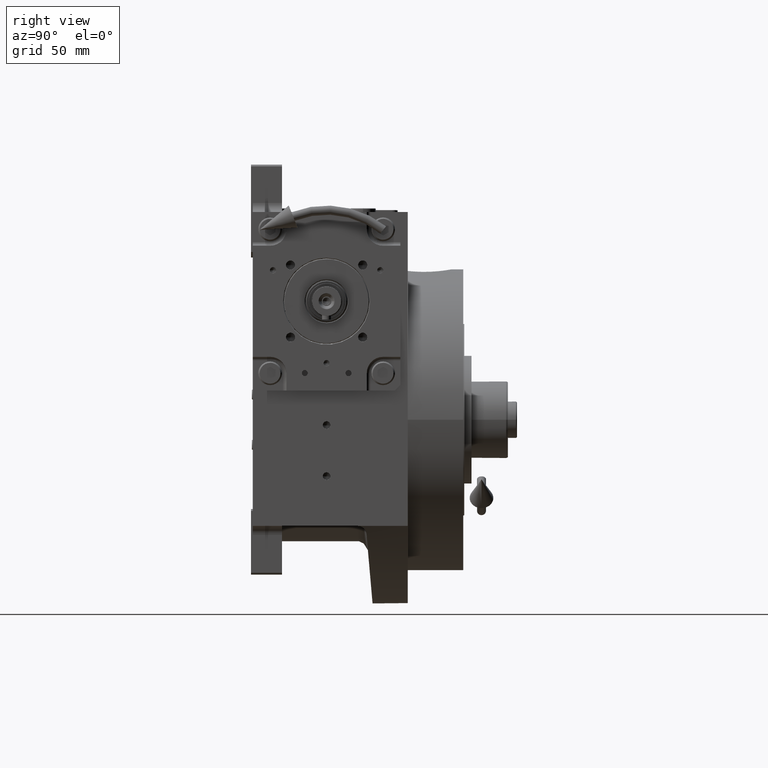
[diagram: clean part render]
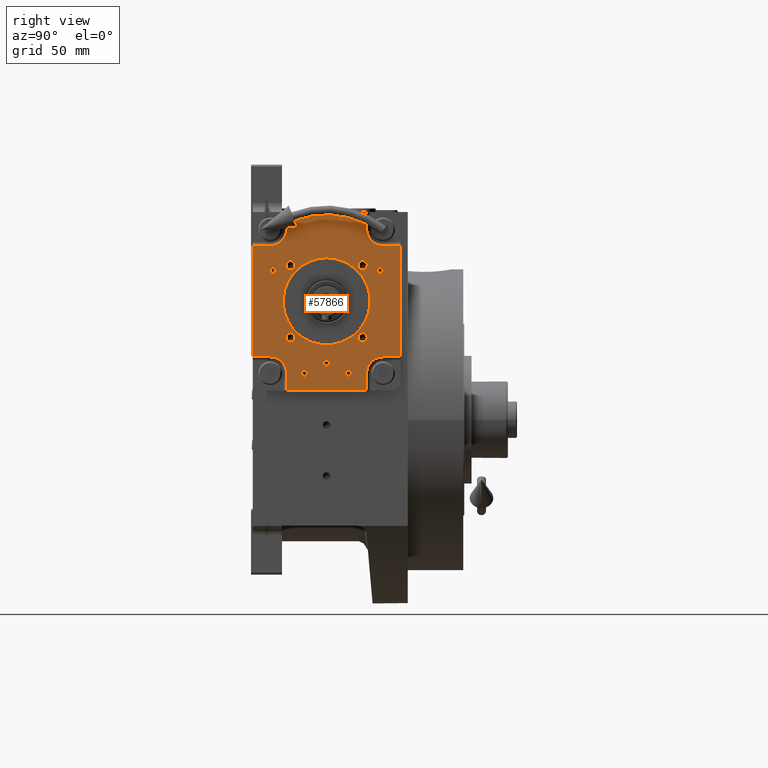
[diagram: same view with one face highlighted and labeled with its STEP entity id]
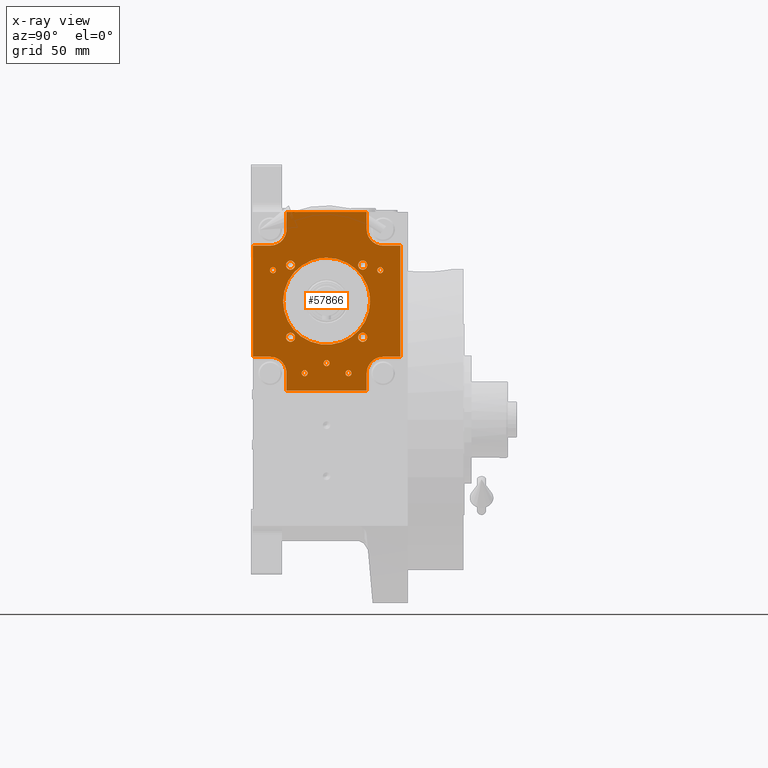
[diagram: x-ray of the same camera — body ghosted, the highlighted face saturated]
A machine part, right view. The second image highlights one B-rep face of the part: STEP entity #57866.
The next image is the same camera in x-ray: the body ghosted, the highlighted face saturated — about 0% of this face is hidden behind the body in this view.
In plain terms, the highlighted planar face has unit normal (-1, -0, 0).
Its self-contained STEP definition (entity closure, byte-faithful):
#305 = CARTESIAN_POINT ( 'NONE',  ( 31.00000000000000000, -14.00000000000047073, -39.50000000000000711 ) ) ;
#439 = CARTESIAN_POINT ( 'NONE',  ( 29.44486372867113388, -14.00000000000047073, -17.00000000000000000 ) ) ;
#487 = CARTESIAN_POINT ( 'NONE',  ( -17.98235932460615061, -13.99999999999960210, 15.76636488206898612 ) ) ;
#490 = EDGE_CURVE ( 'NONE', #65855, #2251, #44888, .T. ) ;
#788 = VERTEX_POINT ( 'NONE', #26096 ) ;
#862 = ORIENTED_EDGE ( 'NONE', *, *, #38657, .F. ) ;
#906 = DIRECTION ( 'NONE',  ( 1.000000000000000000, -2.076117056049039260E-14, 7.549516567451102340E-15 ) ) ;
#981 = CARTESIAN_POINT ( 'NONE',  ( 23.47920115566133248, -14.00000000000049205, -4.271604635540795059 ) ) ;
#1122 = EDGE_LOOP ( 'NONE', ( #7848, #11947 ) ) ;
#1248 = VERTEX_POINT ( 'NONE', #33400 ) ;
#1692 = CARTESIAN_POINT ( 'NONE',  ( 23.44379405512662018, -14.00000000000049205, -4.461832952020050591 ) ) ;
#1851 = VECTOR ( 'NONE', #36402, 1000.000000000000000 ) ;
#2113 = DIRECTION ( 'NONE',  ( -1.000000000000000000, 2.081668171172169775E-14, -5.551115123125785858E-15 ) ) ;
#2251 = VERTEX_POINT ( 'NONE', #51086 ) ;
#2577 = CARTESIAN_POINT ( 'NONE',  ( -40.49999999999929656, -13.99999999999906919, 30.49999999999952749 ) ) ;
#2615 = CARTESIAN_POINT ( 'NONE',  ( 23.70962956883389339, -14.00000000000047962, 3.125609056103077599 ) ) ;
#3009 = ORIENTED_EDGE ( 'NONE', *, *, #56318, .F. ) ;
#3052 = CARTESIAN_POINT ( 'NONE',  ( 40.50000000000071054, -14.00000000000094147, 30.50000000000023448 ) ) ;
#3223 = CARTESIAN_POINT ( 'NONE',  ( -19.79898987322287596, -13.99999999999952749, 19.79898987322306780 ) ) ;
#3243 = EDGE_CURVE ( 'NONE', #13356, #57406, #58826, .T. ) ;
#3357 = ORIENTED_EDGE ( 'NONE', *, *, #25416, .T. ) ;
#3429 = EDGE_CURVE ( 'NONE', #26145, #24021, #31239, .T. ) ;
#3610 = EDGE_CURVE ( 'NONE', #23665, #7778, #30107, .T. ) ;
#4081 = DIRECTION ( 'NONE',  ( -1.000000000000000000, 2.102695122396129936E-14, -8.410780489584520058E-15 ) ) ;
#4509 = CARTESIAN_POINT ( 'NONE',  ( 40.50000000000071054, -14.00000000000094147, 30.50000000000023448 ) ) ;
#4586 = VERTEX_POINT ( 'NONE', #59195 ) ;
#5100 = EDGE_CURVE ( 'NONE', #16660, #65855, #54069, .T. ) ;
#5195 = CARTESIAN_POINT ( 'NONE',  ( -14.56088801808464517, -13.99999999999965894, 18.97165839184646785 ) ) ;
#5212 = CIRCLE ( 'NONE', #69605, 9.000000000000001776 ) ;
#5604 = CARTESIAN_POINT ( 'NONE',  ( -21.99999999999928946, -13.99999999999952749, 48.99999999999976552 ) ) ;
#5850 = EDGE_CURVE ( 'NONE', #70063, #4586, #15036, .T. ) ;
#5886 = CARTESIAN_POINT ( 'NONE',  ( 11.95575968379460541, -14.00000000000020606, 20.71225054030637480 ) ) ;
#6323 = DIRECTION ( 'NONE',  ( 2.076117056049039260E-14, -1.000000000000000000, 1.887379141862854077E-15 ) ) ;
#6402 = CARTESIAN_POINT ( 'NONE',  ( 23.54577769822314082, -14.00000000000049027, -3.887975449872541844 ) ) ;
#6426 = ORIENTED_EDGE ( 'NONE', *, *, #64316, .T. ) ;
#6479 = CARTESIAN_POINT ( 'NONE',  ( 19.79898987322381743, -14.00000000000047073, 19.79898987322330228 ) ) ;
#6542 = DIRECTION ( 'NONE',  ( -1.000000000000000000, 2.076117056049039260E-14, -7.549516567451102340E-15 ) ) ;
#6831 = CIRCLE ( 'NONE', #62036, 2.499999999999998668 ) ;
#6984 = CARTESIAN_POINT ( 'NONE',  ( 31.09486372867113246, -14.00000000000047073, -17.00000000000000000 ) ) ;
#7138 = ORIENTED_EDGE ( 'NONE', *, *, #68054, .F. ) ;
#7207 = ORIENTED_EDGE ( 'NONE', *, *, #37731, .F. ) ;
#7373 = CIRCLE ( 'NONE', #55663, 2.499999999999998668 ) ;
#7684 = CARTESIAN_POINT ( 'NONE',  ( 40.50000000000023448, -14.00000000000094147, -30.50000000000000000 ) ) ;
#7778 = VERTEX_POINT ( 'NONE', #6984 ) ;
#7848 = ORIENTED_EDGE ( 'NONE', *, *, #45136, .F. ) ;
#7981 = LINE ( 'NONE', #2577, #44736 ) ;
#8025 = CARTESIAN_POINT ( 'NONE',  ( 20.71277833345473240, -14.00000000000040323, 11.95494346992311918 ) ) ;
#8203 = DIRECTION ( 'NONE',  ( 2.076117056049039260E-14, -1.000000000000000000, 1.887379141862854077E-15 ) ) ;
#8359 = CIRCLE ( 'NONE', #54388, 2.499999999999998668 ) ;
#8779 = EDGE_CURVE ( 'NONE', #35781, #21665, #38572, .T. ) ;
#8939 = CARTESIAN_POINT ( 'NONE',  ( -21.44833860699360173, -13.99999999999957367, -10.57860939760680630 ) ) ;
#9076 = CARTESIAN_POINT ( 'NONE',  ( 12.00000000000058975, -14.00000000000047073, 39.50000000000000000 ) ) ;
#10020 = CARTESIAN_POINT ( 'NONE',  ( -23.70962961231608190, -13.99999999999950973, -3.125608614640187355 ) ) ;
#11036 = CIRCLE ( 'NONE', #24864, 1.649999999999999911 ) ;
#11210 = EDGE_LOOP ( 'NONE', ( #21929, #45358 ) ) ;
#11478 = DIRECTION ( 'NONE',  ( -1.000000000000000000, 2.081668171172168198E-14, -7.709882115452474222E-15 ) ) ;
#11660 = CARTESIAN_POINT ( 'NONE',  ( -22.64668203140329439, -13.99999999999951505, 7.685839165588406630 ) ) ;
#11854 = CIRCLE ( 'NONE', #50958, 1.650000000000000355 ) ;
#11947 = ORIENTED_EDGE ( 'NONE', *, *, #3610, .F. ) ;
#11996 = ORIENTED_EDGE ( 'NONE', *, *, #8779, .F. ) ;
#12013 = CARTESIAN_POINT ( 'NONE',  ( -23.63854925147780506, -13.99999999999950262, 3.311476437734589329 ) ) ;
#12217 = DIRECTION ( 'NONE',  ( 7.549516567451105496E-15, -1.887379141862852893E-15, 1.000000000000000000 ) ) ;
#12526 = CARTESIAN_POINT ( 'NONE',  ( 1.650000000000553024, -14.00000000000001243, 34.00000000000000000 ) ) ;
#12835 = VECTOR ( 'NONE', #906, 1000.000000000000000 ) ;
#12850 = CARTESIAN_POINT ( 'NONE',  ( 11.95543814826866758, -14.00000000000028777, -20.71254795357616985 ) ) ;
#13207 = DIRECTION ( 'NONE',  ( -1.000000000000000000, 2.081668171172169775E-14, -6.938893903907232322E-15 ) ) ;
#13356 = VERTEX_POINT ( 'NONE', #51536 ) ;
#13840 = AXIS2_PLACEMENT_3D ( 'NONE', #59762, #43200, #53644 ) ;
#13867 = B_SPLINE_CURVE_WITH_KNOTS ( 'NONE', 3,
 ( #29064, #40241, #22236, #28702, #6402, #981, #1692, #33788, #34162, #44228, #44914, #23660, #62179, #27998, #16850, #12850, #38823, #66524, #39532, #55749, #17193, #56099 ),
 .UNSPECIFIED., .F., .F.,
 ( 4, 1, 1, 2, 2, 2, 2, 2, 2, 2, 2, 4 ),
 ( 0.000000000000000000, 0.03125000444582090586, 0.04687500666873135879, 0.05468750778018657832, 0.06250000889164179785, 0.1250000177832835124, 0.1875000266749252131, 0.2500000355665669138, 0.3125000444582086145, 0.3750000533498503152, 0.4375000622414920159, 0.5000000711331337166 ),
 .UNSPECIFIED. ) ;
#14200 = DIRECTION ( 'NONE',  ( 1.000000000000000000, -2.081668171172168198E-14, 7.709882115452474222E-15 ) ) ;
#14340 = CARTESIAN_POINT ( 'NONE',  ( -22.34697688814370764, -13.99999999999955236, -8.409466773887961821 ) ) ;
#15036 = B_SPLINE_CURVE_WITH_KNOTS ( 'NONE', 3,
 ( #25486, #53220, #48187, #26209, #58287, #42076, #21149, #37738, #42774, #37388, #47475, #47839, #8939, #14340, #69411, #47116, #59354, #36328, #20091, #10020, #64025, #70117 ),
 .UNSPECIFIED., .F., .F.,
 ( 4, 2, 2, 2, 2, 2, 2, 1, 1, 2, 2, 4 ),
 ( 0.5000000711331337166, 0.5625000622414920715, 0.6250000533498503152, 0.6875000444582086701, 0.7500000355665669138, 0.8125000266749251576, 0.8750000177832834014, 0.9062500133374625788, 0.9218750111145521675, 0.9296875100030967953, 0.9375000088916416452, 1.000000000000000000 ),
 .UNSPECIFIED. ) ;
#15180 = ORIENTED_EDGE ( 'NONE', *, *, #27960, .F. ) ;
#15272 = FACE_BOUND ( 'NONE', #35763, .T. ) ;
#15312 = EDGE_CURVE ( 'NONE', #1248, #38824, #24921, .T. ) ;
#15435 = ORIENTED_EDGE ( 'NONE', *, *, #66646, .F. ) ;
#15637 = DIRECTION ( 'NONE',  ( -7.324388009679851300E-15, 1.927470528863118556E-15, -1.000000000000000000 ) ) ;
#15981 = CARTESIAN_POINT ( 'NONE',  ( 31.00000000000070699, -14.00000000000094147, 39.50000000000000711 ) ) ;
#16050 = CARTESIAN_POINT ( 'NONE',  ( 17.29898987322382098, -14.00000000000047073, 19.79898987322334492 ) ) ;
#16084 = CARTESIAN_POINT ( 'NONE',  ( -30.99999999999941025, -13.99999999999952749, 30.49999999999976197 ) ) ;
#16143 = CARTESIAN_POINT ( 'NONE',  ( 12.00000000000058975, -14.00000000000047073, 39.50000000000000000 ) ) ;
#16163 = DIRECTION ( 'NONE',  ( -1.000000000000000000, 2.102695122396131513E-14, 6.308085367188395171E-15 ) ) ;
#16256 = AXIS2_PLACEMENT_3D ( 'NONE', #35801, #19240, #40864 ) ;
#16338 = CARTESIAN_POINT ( 'NONE',  ( 6.192328095638624852, -14.00000000000008882, 23.09972492920063303 ) ) ;
#16508 = DIRECTION ( 'NONE',  ( 2.076117056049039260E-14, -1.000000000000000000, 1.887379141862854077E-15 ) ) ;
#16651 = CIRCLE ( 'NONE', #25864, 1.650000000000000355 ) ;
#16657 = DIRECTION ( 'NONE',  ( -1.000000000000000000, 2.102695122396131513E-14, -8.410780489584526369E-15 ) ) ;
#16660 = VERTEX_POINT ( 'NONE', #62209 ) ;
#16672 = CIRCLE ( 'NONE', #23548, 2.499999999999998668 ) ;
#16706 = CARTESIAN_POINT ( 'NONE',  ( 10.57957080955221230, -14.00000000000017231, 21.44796303468474008 ) ) ;
#16850 = CARTESIAN_POINT ( 'NONE',  ( 14.56088552662204272, -14.00000000000034106, -18.97166031808819042 ) ) ;
#17193 = CARTESIAN_POINT ( 'NONE',  ( 1.566774008615122948, -14.00000000000007461, -23.86393752002921786 ) ) ;
#17275 = LINE ( 'NONE', #49708, #55648 ) ;
#17404 = CARTESIAN_POINT ( 'NONE',  ( -23.44379417511092356, -13.99999999999949907, 4.461832321008845526 ) ) ;
#17759 = CARTESIAN_POINT ( 'NONE',  ( -18.97212075496540606, -13.99999999999958611, 14.56041685814039610 ) ) ;
#17826 = LINE ( 'NONE', #50255, #12835 ) ;
#17890 = EDGE_LOOP ( 'NONE', ( #7207, #22234 ) ) ;
#18334 = ORIENTED_EDGE ( 'NONE', *, *, #70347, .F. ) ;
#18401 = ORIENTED_EDGE ( 'NONE', *, *, #23567, .F. ) ;
#18838 = CIRCLE ( 'NONE', #59104, 9.000000000000001776 ) ;
#19240 = DIRECTION ( 'NONE',  ( 2.076117056049039260E-14, -1.000000000000000000, 1.887379141862854077E-15 ) ) ;
#19408 = EDGE_CURVE ( 'NONE', #57406, #13356, #16651, .T. ) ;
#19421 = DIRECTION ( 'NONE',  ( 1.000000000000000000, -2.081668171172169775E-14, 5.551115123125785858E-15 ) ) ;
#19673 = CARTESIAN_POINT ( 'NONE',  ( 22.00000000000070699, -14.00000000000047073, 49.00000000000000000 ) ) ;
#20011 = CIRCLE ( 'NONE', #60272, 1.649999999999998579 ) ;
#20091 = CARTESIAN_POINT ( 'NONE',  ( -23.36748971678164111, -13.99999999999952216, -4.845252042923835489 ) ) ;
#20145 = DIRECTION ( 'NONE',  ( 1.000000000000000000, -2.081668171172169775E-14, 6.938893903907232322E-15 ) ) ;
#20782 = VERTEX_POINT ( 'NONE', #45685 ) ;
#20860 = EDGE_CURVE ( 'NONE', #47834, #2251, #61540, .T. ) ;
#21059 = CARTESIAN_POINT ( 'NONE',  ( 22.29898987322382098, -14.00000000000047073, 19.79898987322334492 ) ) ;
#21085 = VECTOR ( 'NONE', #70603, 1000.000000000000000 ) ;
#21149 = CARTESIAN_POINT ( 'NONE',  ( -11.95576278632353961, -13.99999999999978861, -20.71224872910304526 ) ) ;
#21267 = DIRECTION ( 'NONE',  ( 1.000000000000000000, -2.102695122396131513E-14, 1.682156097916905274E-14 ) ) ;
#21399 = FACE_BOUND ( 'NONE', #17890, .T. ) ;
#21444 = VECTOR ( 'NONE', #12217, 1000.000000000000000 ) ;
#21497 = CARTESIAN_POINT ( 'NONE',  ( -22.29898987322311399, -13.99999999999952749, -19.79898987322381743 ) ) ;
#21665 = VERTEX_POINT ( 'NONE', #21059 ) ;
#21802 = ORIENTED_EDGE ( 'NONE', *, *, #31955, .F. ) ;
#21878 = CARTESIAN_POINT ( 'NONE',  ( 31.00000000000058975, -14.00000000000094147, 30.50000000000000000 ) ) ;
#21891 = DIRECTION ( 'NONE',  ( -1.000000000000000000, 2.102695122396129305E-14, -8.410780489584516903E-15 ) ) ;
#21929 = ORIENTED_EDGE ( 'NONE', *, *, #3243, .F. ) ;
#22234 = ORIENTED_EDGE ( 'NONE', *, *, #48979, .F. ) ;
#22236 = CARTESIAN_POINT ( 'NONE',  ( 23.80536272683614385, -14.00000000000049560, -1.958930260382325317 ) ) ;
#22279 = DIRECTION ( 'NONE',  ( -1.000000000000000000, 2.102695122396129305E-14, -8.410780489584516903E-15 ) ) ;
#22369 = ORIENTED_EDGE ( 'NONE', *, *, #69710, .T. ) ;
#22811 = CARTESIAN_POINT ( 'NONE',  ( -1.649999999999447020, -13.99999999999999822, 34.00000000000000000 ) ) ;
#22985 = CIRCLE ( 'NONE', #47172, 1.650000000000000355 ) ;
#23055 = VERTEX_POINT ( 'NONE', #23481 ) ;
#23481 = CARTESIAN_POINT ( 'NONE',  ( 10.35000000000058940, -14.00000000000047073, 39.50000000000000000 ) ) ;
#23548 = AXIS2_PLACEMENT_3D ( 'NONE', #61943, #29901, #56200 ) ;
#23567 = EDGE_CURVE ( 'NONE', #53692, #69162, #16672, .T. ) ;
#23660 = CARTESIAN_POINT ( 'NONE',  ( 18.97211941539651647, -14.00000000000041744, -14.56041862828632638 ) ) ;
#23665 = VERTEX_POINT ( 'NONE', #69472 ) ;
#23867 = CARTESIAN_POINT ( 'NONE',  ( 22.34697646102524615, -14.00000000000044764, 8.409467918700501698 ) ) ;
#24021 = VERTEX_POINT ( 'NONE', #12526 ) ;
#24217 = CARTESIAN_POINT ( 'NONE',  ( 23.24092213513718619, -14.00000000000047073, 5.420264589931038657 ) ) ;
#24777 = CARTESIAN_POINT ( 'NONE',  ( -19.79898987322287596, -13.99999999999952749, 19.79898987322306780 ) ) ;
#24779 = VERTEX_POINT ( 'NONE', #33185 ) ;
#24840 = VERTEX_POINT ( 'NONE', #29185 ) ;
#24864 = AXIS2_PLACEMENT_3D ( 'NONE', #49295, #37059, #70816 ) ;
#24921 = CIRCLE ( 'NONE', #64030, 9.000000000000001776 ) ;
#25170 = CARTESIAN_POINT ( 'NONE',  ( 19.79898987322358295, -14.00000000000047073, -19.79898987322330228 ) ) ;
#25416 = EDGE_CURVE ( 'NONE', #788, #25497, #64006, .T. ) ;
#25486 = CARTESIAN_POINT ( 'NONE',  ( -2.713340875393338267E-10, -13.99999927803739830, -23.86397666347606616 ) ) ;
#25497 = VERTEX_POINT ( 'NONE', #35951 ) ;
#25580 = EDGE_CURVE ( 'NONE', #24840, #32502, #60582, .T. ) ;
#25864 = AXIS2_PLACEMENT_3D ( 'NONE', #27678, #49667, #22279 ) ;
#26092 = FACE_BOUND ( 'NONE', #1122, .T. ) ;
#26096 = CARTESIAN_POINT ( 'NONE',  ( 22.00000000000000000, -14.00000000000047073, -49.00000000000000000 ) ) ;
#26145 = VERTEX_POINT ( 'NONE', #22811 ) ;
#26209 = CARTESIAN_POINT ( 'NONE',  ( -6.192332379421918276, -13.99999999999990941, -23.09972376668364191 ) ) ;
#26263 = ORIENTED_EDGE ( 'NONE', *, *, #52830, .F. ) ;
#26394 = CARTESIAN_POINT ( 'NONE',  ( 5.473399511402021744E-13, -13.99999999999999822, 34.00000000000000000 ) ) ;
#26435 = FACE_BOUND ( 'NONE', #46720, .T. ) ;
#26874 = CARTESIAN_POINT ( 'NONE',  ( -13.64999999999941060, -13.99999999999999822, 39.49999999999976552 ) ) ;
#26967 = VERTEX_POINT ( 'NONE', #35901 ) ;
#27337 = DIRECTION ( 'NONE',  ( -1.000000000000000000, 2.076117056049039260E-14, -7.549516567451102340E-15 ) ) ;
#27503 = CARTESIAN_POINT ( 'NONE',  ( -6.191965501752080492, -13.99999999999982592, 23.09972859531188050 ) ) ;
#27567 = DIRECTION ( 'NONE',  ( -7.549516567451105496E-15, 1.887379141862852893E-15, -1.000000000000000000 ) ) ;
#27678 = CARTESIAN_POINT ( 'NONE',  ( -11.99999999999941025, -13.99999999999999822, 39.49999999999976552 ) ) ;
#27845 = CARTESIAN_POINT ( 'NONE',  ( 17.98245215247071727, -14.00000000000033928, 15.76637152696322097 ) ) ;
#27960 = EDGE_CURVE ( 'NONE', #24779, #38824, #7981, .T. ) ;
#27998 = CARTESIAN_POINT ( 'NONE',  ( 15.76650524893588212, -14.00000000000035705, -17.98226651476912963 ) ) ;
#28088 = DIRECTION ( 'NONE',  ( -7.549516567451105496E-15, 1.887379141862852893E-15, -1.000000000000000000 ) ) ;
#28702 = CARTESIAN_POINT ( 'NONE',  ( 23.63854918778881853, -14.00000000000049560, -3.311476904162199197 ) ) ;
#28728 = EDGE_CURVE ( 'NONE', #52680, #70063, #13867, .T. ) ;
#29064 = CARTESIAN_POINT ( 'NONE',  ( 23.86397420030345273, -13.99999855607529575, 1.113396180807413316E-07 ) ) ;
#29185 = CARTESIAN_POINT ( 'NONE',  ( -22.29898987322287596, -13.99999999999952749, 19.79898987322306780 ) ) ;
#29573 = CARTESIAN_POINT ( 'NONE',  ( -21.99999999999928946, -13.99999999999952749, 48.99999999999976552 ) ) ;
#29842 = VECTOR ( 'NONE', #6542, 1000.000000000000000 ) ;
#29901 = DIRECTION ( 'NONE',  ( 2.076117056049039260E-14, -1.000000000000000000, 1.887379141862854077E-15 ) ) ;
#30015 = ORIENTED_EDGE ( 'NONE', *, *, #28728, .T. ) ;
#30107 = CIRCLE ( 'NONE', #70320, 1.649999999999998579 ) ;
#30188 = DIRECTION ( 'NONE',  ( 1.000000000000000000, -2.081668171172169775E-14, 5.551115123125785858E-15 ) ) ;
#30258 = DIRECTION ( 'NONE',  ( 2.076117056049039260E-14, -1.000000000000000000, 1.887379141862854077E-15 ) ) ;
#30506 = EDGE_CURVE ( 'NONE', #69326, #63554, #6831, .T. ) ;
#30733 = ORIENTED_EDGE ( 'NONE', *, *, #25580, .F. ) ;
#30794 = DIRECTION ( 'NONE',  ( -7.549516567451105496E-15, 1.887379141862852893E-15, -1.000000000000000000 ) ) ;
#31239 = CIRCLE ( 'NONE', #34686, 1.649999999999999911 ) ;
#31831 = DIRECTION ( 'NONE',  ( 2.076117056049039260E-14, -1.000000000000000000, 1.887379141862854077E-15 ) ) ;
#31955 = EDGE_CURVE ( 'NONE', #26967, #20782, #69070, .T. ) ;
#32211 = FACE_BOUND ( 'NONE', #44909, .T. ) ;
#32340 = VERTEX_POINT ( 'NONE', #21878 ) ;
#32502 = VERTEX_POINT ( 'NONE', #55383 ) ;
#32663 = ORIENTED_EDGE ( 'NONE', *, *, #490, .T. ) ;
#33185 = CARTESIAN_POINT ( 'NONE',  ( -40.49999999999929656, -13.99999999999906919, 30.49999999999952749 ) ) ;
#33279 = CARTESIAN_POINT ( 'NONE',  ( -15.76650740898502967, -13.99999999999963585, 17.98226460072666555 ) ) ;
#33400 = CARTESIAN_POINT ( 'NONE',  ( -21.99999999999928946, -13.99999999999952749, 39.49999999999976552 ) ) ;
#33636 = CARTESIAN_POINT ( 'NONE',  ( -11.95544121681295202, -13.99999999999971223, 20.71254616477421706 ) ) ;
#33788 = CARTESIAN_POINT ( 'NONE',  ( 23.09942915084197423, -14.00000000000048672, -6.192947907790843587 ) ) ;
#34006 = CARTESIAN_POINT ( 'NONE',  ( -7.685223904493398983, -13.99999999999979750, 22.64685083059237058 ) ) ;
#34088 = CARTESIAN_POINT ( 'NONE',  ( 31.00000000000011724, -14.00000000000047073, -30.50000000000000000 ) ) ;
#34162 = CARTESIAN_POINT ( 'NONE',  ( 22.64668168243281698, -14.00000000000048317, -7.685840235349227001 ) ) ;
#34235 = EDGE_CURVE ( 'NONE', #45935, #53532, #17826, .T. ) ;
#34354 = CARTESIAN_POINT ( 'NONE',  ( -23.80536274324659018, -13.99999999999950440, 1.958929982869095809 ) ) ;
#34368 = AXIS2_PLACEMENT_3D ( 'NONE', #59934, #70371, #36910 ) ;
#34686 = AXIS2_PLACEMENT_3D ( 'NONE', #26394, #31831, #4081 ) ;
#34747 = VECTOR ( 'NONE', #58907, 1000.000000000000000 ) ;
#34846 = EDGE_CURVE ( 'NONE', #32502, #24840, #63659, .T. ) ;
#34867 = ORIENTED_EDGE ( 'NONE', *, *, #20860, .F. ) ;
#35763 = EDGE_LOOP ( 'NONE', ( #18401, #44008 ) ) ;
#35781 = VERTEX_POINT ( 'NONE', #16050 ) ;
#35801 = CARTESIAN_POINT ( 'NONE',  ( -11.99999999999941025, -13.99999999999999822, 39.49999999999976552 ) ) ;
#35901 = CARTESIAN_POINT ( 'NONE',  ( -27.79486372867066279, -13.99999999999952749, -17.00000000000047251 ) ) ;
#35904 = CARTESIAN_POINT ( 'NONE',  ( -19.79898987322311044, -13.99999999999952749, -19.79898987322381743 ) ) ;
#35951 = CARTESIAN_POINT ( 'NONE',  ( 22.00000000000000000, -14.00000000000047073, -39.50000000000000711 ) ) ;
#36328 = CARTESIAN_POINT ( 'NONE',  ( -23.32664505306314240, -13.99999999999952749, -5.038316317723076310 ) ) ;
#36402 = DIRECTION ( 'NONE',  ( 7.549516567451105496E-15, -1.887379141862852893E-15, 1.000000000000000000 ) ) ;
#36898 = FACE_BOUND ( 'NONE', #40790, .T. ) ;
#36910 = DIRECTION ( 'NONE',  ( 1.000000000000000000, -2.102695122396131513E-14, 8.410780489584526369E-15 ) ) ;
#37059 = DIRECTION ( 'NONE',  ( 2.076117056049039260E-14, -1.000000000000000000, 1.887379141862854077E-15 ) ) ;
#37388 = CARTESIAN_POINT ( 'NONE',  ( -17.98245375129746648, -13.99999999999965716, -15.76636968212420342 ) ) ;
#37466 = ORIENTED_EDGE ( 'NONE', *, *, #44315, .F. ) ;
#37530 = DIRECTION ( 'NONE',  ( 1.000000000000000000, -2.102695122396129305E-14, 8.410780489584516903E-15 ) ) ;
#37622 = PLANE ( 'NONE',  #62892 ) ;
#37731 = EDGE_CURVE ( 'NONE', #45759, #23055, #11854, .T. ) ;
#37738 = CARTESIAN_POINT ( 'NONE',  ( -14.56055017842600030, -13.99999999999972999, -18.97195719011455850 ) ) ;
#38381 = LINE ( 'NONE', #5604, #64996 ) ;
#38424 = EDGE_CURVE ( 'NONE', #25497, #68769, #18838, .T. ) ;
#38572 = CIRCLE ( 'NONE', #56968, 2.499999999999998668 ) ;
#38657 = EDGE_CURVE ( 'NONE', #21665, #35781, #68336, .T. ) ;
#38761 = DIRECTION ( 'NONE',  ( -1.000000000000000000, 2.081668171172169775E-14, -5.551115123125785858E-15 ) ) ;
#38823 = CARTESIAN_POINT ( 'NONE',  ( 10.57953246189558527, -14.00000000000026112, -21.44790635888598374 ) ) ;
#38824 = VERTEX_POINT ( 'NONE', #16084 ) ;
#39032 = CARTESIAN_POINT ( 'NONE',  ( 14.56054772235432182, -14.00000000000026290, 18.97195909268312519 ) ) ;
#39386 = CARTESIAN_POINT ( 'NONE',  ( -20.71231301861851648, -13.99999999999955058, 11.95552608799954619 ) ) ;
#39532 = CARTESIAN_POINT ( 'NONE',  ( 6.191961161477112618, -14.00000000000017053, -23.09972976944118628 ) ) ;
#39674 = CARTESIAN_POINT ( 'NONE',  ( 13.65000000000059011, -14.00000000000047073, 39.50000000000000000 ) ) ;
#40241 = CARTESIAN_POINT ( 'NONE',  ( 23.86322586898087295, -14.00000000000049738, -0.7869473592183042765 ) ) ;
#40316 = ORIENTED_EDGE ( 'NONE', *, *, #40718, .F. ) ;
#40452 = CARTESIAN_POINT ( 'NONE',  ( 23.86397420030345273, -13.99999855607529575, 1.113396180807413316E-07 ) ) ;
#40481 = ORIENTED_EDGE ( 'NONE', *, *, #5100, .T. ) ;
#40718 = EDGE_CURVE ( 'NONE', #24021, #26145, #11036, .T. ) ;
#40790 = EDGE_LOOP ( 'NONE', ( #15435, #53502 ) ) ;
#40864 = DIRECTION ( 'NONE',  ( 1.000000000000000000, -2.102695122396129305E-14, 8.410780489584516903E-15 ) ) ;
#41062 = DIRECTION ( 'NONE',  ( 2.076117056049039260E-14, -1.000000000000000000, 1.887379141862854077E-15 ) ) ;
#41571 = EDGE_CURVE ( 'NONE', #32340, #46540, #5212, .T. ) ;
#41821 = AXIS2_PLACEMENT_3D ( 'NONE', #3223, #30258, #20145 ) ;
#42076 = CARTESIAN_POINT ( 'NONE',  ( -10.57957418679632156, -13.99999999999982059, -21.44796135337869458 ) ) ;
#42170 = EDGE_LOOP ( 'NONE', ( #30015, #59911, #22369 ) ) ;
#42306 = DIRECTION ( 'NONE',  ( 2.076117056049040837E-14, 1.000000000000000000, -1.887379141862540899E-15 ) ) ;
#42758 = DIRECTION ( 'NONE',  ( 7.549516567451105496E-15, -1.887379141862852893E-15, 1.000000000000000000 ) ) ;
#42774 = CARTESIAN_POINT ( 'NONE',  ( -15.76640134121061187, -13.99999999999970512, -17.98226844684485926 ) ) ;
#43124 = ORIENTED_EDGE ( 'NONE', *, *, #34846, .F. ) ;
#43200 = DIRECTION ( 'NONE',  ( -2.076117056049039260E-14, 1.000000000000000000, -1.887379141862854077E-15 ) ) ;
#43372 = CARTESIAN_POINT ( 'NONE',  ( 2.906563878468657298E-13, -13.99999999999999822, 0.000000000000000000 ) ) ;
#43435 = CARTESIAN_POINT ( 'NONE',  ( -17.29898987322311399, -13.99999999999952749, -19.79898987322381743 ) ) ;
#43709 = FACE_BOUND ( 'NONE', #54876, .T. ) ;
#43719 = CARTESIAN_POINT ( 'NONE',  ( 1.566768470596830776, -13.99999999999998401, 23.86400311483097880 ) ) ;
#43901 = DIRECTION ( 'NONE',  ( -2.076117056049039260E-14, 1.000000000000000000, -1.887379141862854077E-15 ) ) ;
#43907 = CARTESIAN_POINT ( 'NONE',  ( 22.00000000000000000, -14.00000000000047073, -49.00000000000000000 ) ) ;
#44008 = ORIENTED_EDGE ( 'NONE', *, *, #64957, .F. ) ;
#44228 = CARTESIAN_POINT ( 'NONE',  ( 21.44818503823684352, -14.00000000000045830, -10.57917427091282114 ) ) ;
#44265 = LINE ( 'NONE', #43907, #61850 ) ;
#44315 = EDGE_CURVE ( 'NONE', #788, #47834, #44265, .T. ) ;
#44441 = CARTESIAN_POINT ( 'NONE',  ( 18.97164947463584639, -14.00000000000036415, 14.56102366058705933 ) ) ;
#44736 = VECTOR ( 'NONE', #46536, 1000.000000000000000 ) ;
#44888 = CIRCLE ( 'NONE', #13840, 9.000000000000001776 ) ;
#44909 = EDGE_LOOP ( 'NONE', ( #21802, #7138 ) ) ;
#44914 = CARTESIAN_POINT ( 'NONE',  ( 20.71231213005250638, -14.00000000000044764, -11.95552765314629085 ) ) ;
#45126 = CARTESIAN_POINT ( 'NONE',  ( -23.86397420030269245, -13.99999855607435251, -1.113400899255267973E-07 ) ) ;
#45136 = EDGE_CURVE ( 'NONE', #7778, #23665, #49322, .T. ) ;
#45358 = ORIENTED_EDGE ( 'NONE', *, *, #19408, .F. ) ;
#45417 = LINE ( 'NONE', #54832, #29842 ) ;
#45685 = CARTESIAN_POINT ( 'NONE',  ( -31.09486372867066351, -13.99999999999906919, -17.00000000000047251 ) ) ;
#45759 = VERTEX_POINT ( 'NONE', #39674 ) ;
#45811 = EDGE_CURVE ( 'NONE', #61219, #68769, #45417, .T. ) ;
#45895 = LINE ( 'NONE', #3052, #61549 ) ;
#45918 = CARTESIAN_POINT ( 'NONE',  ( 17.29898987322358295, -14.00000000000047073, -19.79898987322334492 ) ) ;
#45935 = VERTEX_POINT ( 'NONE', #29573 ) ;
#46536 = DIRECTION ( 'NONE',  ( 1.000000000000000000, -2.076117056049039260E-14, 7.549516567451102340E-15 ) ) ;
#46540 = VERTEX_POINT ( 'NONE', #58111 ) ;
#46578 = CARTESIAN_POINT ( 'NONE',  ( 23.32664490037764082, -14.00000000000047784, 5.038317025993702458 ) ) ;
#46720 = EDGE_LOOP ( 'NONE', ( #40316, #58766 ) ) ;
#46758 = DIRECTION ( 'NONE',  ( 2.076117056049039260E-14, -1.000000000000000000, 1.887379141862854077E-15 ) ) ;
#47116 = CARTESIAN_POINT ( 'NONE',  ( -23.10547566701033162, -13.99999999999953104, -5.990996842901803454 ) ) ;
#47172 = AXIS2_PLACEMENT_3D ( 'NONE', #16143, #60781, #21891 ) ;
#47475 = CARTESIAN_POINT ( 'NONE',  ( -18.97165082881165787, -13.99999999999963407, -14.56102186836350043 ) ) ;
#47562 = EDGE_LOOP ( 'NONE', ( #43124, #30733 ) ) ;
#47834 = VERTEX_POINT ( 'NONE', #70318 ) ;
#47839 = CARTESIAN_POINT ( 'NONE',  ( -20.71277920861273714, -13.99999999999958966, -11.95494192533090150 ) ) ;
#48187 = CARTESIAN_POINT ( 'NONE',  ( -3.118952648201409161, -13.99999999999997513, -23.71108882256602257 ) ) ;
#48332 = DIRECTION ( 'NONE',  ( 2.076117056049039260E-14, -1.000000000000000000, 1.887379141862854077E-15 ) ) ;
#48395 = VERTEX_POINT ( 'NONE', #70241 ) ;
#48782 = FACE_BOUND ( 'NONE', #42170, .T. ) ;
#48979 = EDGE_CURVE ( 'NONE', #23055, #45759, #22985, .T. ) ;
#49148 = CARTESIAN_POINT ( 'NONE',  ( -23.09942936675824399, -13.99999999999950973, 6.192947045178980758 ) ) ;
#49295 = CARTESIAN_POINT ( 'NONE',  ( 5.473399511402021744E-13, -13.99999999999999822, 34.00000000000000000 ) ) ;
#49322 = CIRCLE ( 'NONE', #34368, 1.649999999999998579 ) ;
#49350 = DIRECTION ( 'NONE',  ( 2.076117056049039260E-14, -1.000000000000000000, 1.887379141862854077E-15 ) ) ;
#49481 = CARTESIAN_POINT ( 'NONE',  ( -3.119331459815529506, -13.99999999999988987, 23.71108225105584921 ) ) ;
#49667 = DIRECTION ( 'NONE',  ( 2.076117056049039260E-14, -1.000000000000000000, 1.887379141862854077E-15 ) ) ;
#49708 = CARTESIAN_POINT ( 'NONE',  ( 22.00000000000070699, -14.00000000000047073, 49.00000000000000000 ) ) ;
#49839 = CARTESIAN_POINT ( 'NONE',  ( -23.47920126455762713, -13.99999999999950262, 4.271604035882295314 ) ) ;
#50194 = CARTESIAN_POINT ( 'NONE',  ( -23.86322586908621446, -13.99999999999950262, 0.7869472472485216086 ) ) ;
#50255 = CARTESIAN_POINT ( 'NONE',  ( -21.99999999999928946, -13.99999999999952749, 48.99999999999976552 ) ) ;
#50958 = AXIS2_PLACEMENT_3D ( 'NONE', #9076, #48332, #37530 ) ;
#51086 = CARTESIAN_POINT ( 'NONE',  ( -22.00000000000000000, -13.99999999999952749, -39.50000000000047606 ) ) ;
#51536 = CARTESIAN_POINT ( 'NONE',  ( -10.34999999999940989, -13.99999999999999822, 39.49999999999976552 ) ) ;
#51797 = CARTESIAN_POINT ( 'NONE',  ( -22.00000000000000000, -13.99999999999952749, -49.00000000000047606 ) ) ;
#51957 = CARTESIAN_POINT ( 'NONE',  ( 21.44833792708097420, -14.00000000000042633, 10.57861081113211021 ) ) ;
#52217 = AXIS2_PLACEMENT_3D ( 'NONE', #58961, #8203, #30188 ) ;
#52529 = AXIS2_PLACEMENT_3D ( 'NONE', #24777, #46758, #68699 ) ;
#52680 = VERTEX_POINT ( 'NONE', #63784 ) ;
#52830 = EDGE_CURVE ( 'NONE', #53532, #46540, #17275, .T. ) ;
#53220 = CARTESIAN_POINT ( 'NONE',  ( -1.566773563359651344, -14.00000000000001066, -23.86400276692707223 ) ) ;
#53453 = DIRECTION ( 'NONE',  ( -2.076117056049039260E-14, 1.000000000000000000, -1.887379141862854077E-15 ) ) ;
#53502 = ORIENTED_EDGE ( 'NONE', *, *, #30506, .F. ) ;
#53532 = VERTEX_POINT ( 'NONE', #19673 ) ;
#53644 = DIRECTION ( 'NONE',  ( 7.324388009679851300E-15, -1.927470528863118556E-15, 1.000000000000000000 ) ) ;
#53692 = VERTEX_POINT ( 'NONE', #43435 ) ;
#54056 = CARTESIAN_POINT ( 'NONE',  ( -29.44486372867066493, -13.99999999999906919, -17.00000000000047251 ) ) ;
#54069 = LINE ( 'NONE', #60170, #21085 ) ;
#54388 = AXIS2_PLACEMENT_3D ( 'NONE', #35904, #55837, #13207 ) ;
#54458 = CARTESIAN_POINT ( 'NONE',  ( -2.713340875393338267E-10, -13.99999927803739830, -23.86397666347606616 ) ) ;
#54543 = FACE_BOUND ( 'NONE', #47562, .T. ) ;
#54832 = CARTESIAN_POINT ( 'NONE',  ( 40.50000000000023448, -14.00000000000094147, -30.50000000000000000 ) ) ;
#54876 = EDGE_LOOP ( 'NONE', ( #862, #11996 ) ) ;
#54906 = CARTESIAN_POINT ( 'NONE',  ( -23.54577778822919853, -13.99999999999950973, 3.887974903385837511 ) ) ;
#55325 = CARTESIAN_POINT ( 'NONE',  ( 19.79898987322358295, -14.00000000000047073, -19.79898987322334492 ) ) ;
#55380 = ORIENTED_EDGE ( 'NONE', *, *, #38424, .T. ) ;
#55383 = CARTESIAN_POINT ( 'NONE',  ( -17.29898987322287596, -13.99999999999952749, 19.79898987322306780 ) ) ;
#55438 = EDGE_LOOP ( 'NONE', ( #57646, #56781, #56891, #15180, #18334, #40481, #32663, #34867, #37466, #3357, #55380, #58316, #3009, #6426, #58638, #26263 ) ) ;
#55648 = VECTOR ( 'NONE', #28088, 1000.000000000000000 ) ;
#55663 = AXIS2_PLACEMENT_3D ( 'NONE', #25170, #41062, #19421 ) ;
#55749 = CARTESIAN_POINT ( 'NONE',  ( 3.119326620315868492, -14.00000000000011013, -23.71108290340067981 ) ) ;
#55837 = DIRECTION ( 'NONE',  ( 2.076117056049039260E-14, -1.000000000000000000, 1.887379141862854077E-15 ) ) ;
#55956 = VECTOR ( 'NONE', #42758, 1000.000000000000000 ) ;
#56099 = CARTESIAN_POINT ( 'NONE',  ( -2.713340875393338267E-10, -13.99999927803739830, -23.86397666347606616 ) ) ;
#56200 = DIRECTION ( 'NONE',  ( 1.000000000000000000, -2.081668171172169775E-14, 6.938893903907232322E-15 ) ) ;
#56299 = EDGE_CURVE ( 'NONE', #45935, #1248, #38381, .T. ) ;
#56318 = EDGE_CURVE ( 'NONE', #48395, #61219, #45895, .T. ) ;
#56781 = ORIENTED_EDGE ( 'NONE', *, *, #56299, .T. ) ;
#56891 = ORIENTED_EDGE ( 'NONE', *, *, #15312, .T. ) ;
#56968 = AXIS2_PLACEMENT_3D ( 'NONE', #6479, #61566, #2113 ) ;
#57018 = CARTESIAN_POINT ( 'NONE',  ( 23.36748957619263223, -14.00000000000047429, 4.845252721682827612 ) ) ;
#57406 = VERTEX_POINT ( 'NONE', #26874 ) ;
#57646 = ORIENTED_EDGE ( 'NONE', *, *, #34235, .F. ) ;
#57866 = ADVANCED_FACE ( 'NONE', ( #32211, #26092, #26435, #69653, #48782, #21399, #64609, #15272, #36898, #43709, #54543 ), #37622, .F. ) ;
#57910 = CARTESIAN_POINT ( 'NONE',  ( 22.00000000000000000, -14.00000000000047073, -49.00000000000000000 ) ) ;
#58002 = LINE ( 'NONE', #59057, #1851 ) ;
#58111 = CARTESIAN_POINT ( 'NONE',  ( 22.00000000000070699, -14.00000000000047073, 39.50000000000000000 ) ) ;
#58159 = DIRECTION ( 'NONE',  ( -2.076117056049039260E-14, 1.000000000000000000, -1.887379141862854077E-15 ) ) ;
#58287 = CARTESIAN_POINT ( 'NONE',  ( -7.685173543682134678, -13.99999999999988276, -22.64680135628331925 ) ) ;
#58316 = ORIENTED_EDGE ( 'NONE', *, *, #45811, .F. ) ;
#58638 = ORIENTED_EDGE ( 'NONE', *, *, #41571, .T. ) ;
#58766 = ORIENTED_EDGE ( 'NONE', *, *, #3429, .F. ) ;
#58826 = CIRCLE ( 'NONE', #16256, 1.650000000000000355 ) ;
#58907 = DIRECTION ( 'NONE',  ( -1.000000000000000000, 2.076117056049039260E-14, -7.549516567451102340E-15 ) ) ;
#58961 = CARTESIAN_POINT ( 'NONE',  ( 19.79898987322381743, -14.00000000000047073, 19.79898987322334492 ) ) ;
#59057 = CARTESIAN_POINT ( 'NONE',  ( -40.49999999999976552, -13.99999999999905498, -30.50000000000047251 ) ) ;
#59104 = AXIS2_PLACEMENT_3D ( 'NONE', #305, #43901, #11478 ) ;
#59195 = CARTESIAN_POINT ( 'NONE',  ( -23.86397420030269245, -13.99999855607435251, -1.113400899255267973E-07 ) ) ;
#59354 = CARTESIAN_POINT ( 'NONE',  ( -23.24092231173622380, -13.99999999999952927, -5.420263831053599546 ) ) ;
#59762 = CARTESIAN_POINT ( 'NONE',  ( -31.00000000000000000, -13.99999999999906919, -39.50000000000047606 ) ) ;
#59911 = ORIENTED_EDGE ( 'NONE', *, *, #5850, .T. ) ;
#59934 = CARTESIAN_POINT ( 'NONE',  ( 29.44486372867113388, -14.00000000000047073, -17.00000000000000000 ) ) ;
#60170 = CARTESIAN_POINT ( 'NONE',  ( -40.49999999999976552, -13.99999999999905498, -30.50000000000047251 ) ) ;
#60272 = AXIS2_PLACEMENT_3D ( 'NONE', #65840, #16508, #16163 ) ;
#60582 = CIRCLE ( 'NONE', #52529, 2.499999999999998668 ) ;
#60781 = DIRECTION ( 'NONE',  ( 2.076117056049039260E-14, -1.000000000000000000, 1.887379141862854077E-15 ) ) ;
#60985 = CARTESIAN_POINT ( 'NONE',  ( 15.76639915680370940, -14.00000000000029310, 17.98227038497793373 ) ) ;
#61219 = VERTEX_POINT ( 'NONE', #7684 ) ;
#61540 = LINE ( 'NONE', #51797, #21444 ) ;
#61549 = VECTOR ( 'NONE', #30794, 1000.000000000000000 ) ;
#61566 = DIRECTION ( 'NONE',  ( 2.076117056049039260E-14, -1.000000000000000000, 1.887379141862854077E-15 ) ) ;
#61652 = DIRECTION ( 'NONE',  ( 2.076117056049039260E-14, -1.000000000000000000, 1.887379141862854077E-15 ) ) ;
#61696 = CARTESIAN_POINT ( 'NONE',  ( -21.44818571229885862, -13.99999999999953459, 10.57917287093096448 ) ) ;
#61850 = VECTOR ( 'NONE', #27337, 1000.000000000000000 ) ;
#61943 = CARTESIAN_POINT ( 'NONE',  ( -19.79898987322311044, -13.99999999999952749, -19.79898987322381743 ) ) ;
#62036 = AXIS2_PLACEMENT_3D ( 'NONE', #55325, #6323, #38761 ) ;
#62179 = CARTESIAN_POINT ( 'NONE',  ( 17.98235770176459525, -14.00000000000039968, -15.76636675099966212 ) ) ;
#62209 = CARTESIAN_POINT ( 'NONE',  ( -40.49999999999976552, -13.99999999999905498, -30.50000000000047251 ) ) ;
#62402 = CARTESIAN_POINT ( 'NONE',  ( 23.10547545258898694, -14.00000000000046896, 5.990997677065748483 ) ) ;
#62681 = B_SPLINE_CURVE_WITH_KNOTS ( 'NONE', 3,
 ( #45126, #50194, #34354, #12013, #54906, #49839, #17404, #49148, #11660, #61696, #39386, #17759, #487, #33279, #5195, #33636, #66395, #34006, #27503, #49481, #71069, #43719, #65668, #16338, #66028, #16706, #5886, #39032, #60985, #27845, #44441, #8025, #51957, #23867, #62777, #62402, #24217, #46578, #57018, #2615, #68863, #40452 ),
 .UNSPECIFIED., .F., .F.,
 ( 4, 1, 1, 2, 2, 2, 2, 2, 2, 2, 2, 2, 2, 2, 2, 2, 2, 2, 1, 1, 2, 2, 4 ),
 ( 0.000000000000000000, 0.03124999999999984041, 0.04687499999999977102, 0.05468749999999974326, 0.06249999999999970857, 0.1249999999999996947, 0.1874999999999996947, 0.2499999999999997224, 0.3124999999999997224, 0.3749999999999997224, 0.4374999999999997780, 0.4999999999999997780, 0.5624999999999997780, 0.6249999999999997780, 0.6874999999999997780, 0.7499999999999997780, 0.8124999999999997780, 0.8749999999999996669, 0.9062499999999995559, 0.9218749999999996669, 0.9296874999999996669, 0.9374999999999997780, 1.000000000000000000 ),
 .UNSPECIFIED. ) ;
#62777 = CARTESIAN_POINT ( 'NONE',  ( 22.74139545049715849, -14.00000000000045475, 7.307390402314347000 ) ) ;
#62892 = AXIS2_PLACEMENT_3D ( 'NONE', #43372, #42306, #64248 ) ;
#63554 = VERTEX_POINT ( 'NONE', #68368 ) ;
#63659 = CIRCLE ( 'NONE', #41821, 2.499999999999998668 ) ;
#63784 = CARTESIAN_POINT ( 'NONE',  ( 23.86397420030345273, -13.99999855607529575, 1.113396180807413316E-07 ) ) ;
#64006 = LINE ( 'NONE', #57910, #55956 ) ;
#64025 = CARTESIAN_POINT ( 'NONE',  ( -23.86245127016141865, -13.99999999999950084, -1.574215097676136432 ) ) ;
#64030 = AXIS2_PLACEMENT_3D ( 'NONE', #69275, #58159, #14200 ) ;
#64248 = DIRECTION ( 'NONE',  ( 1.000000000000000000, -2.076117056049039260E-14, 7.549516567451102340E-15 ) ) ;
#64316 = EDGE_CURVE ( 'NONE', #48395, #32340, #70399, .T. ) ;
#64506 = AXIS2_PLACEMENT_3D ( 'NONE', #54056, #49350, #21267 ) ;
#64609 = FACE_BOUND ( 'NONE', #11210, .T. ) ;
#64957 = EDGE_CURVE ( 'NONE', #69162, #53692, #8359, .T. ) ;
#64996 = VECTOR ( 'NONE', #27567, 1000.000000000000000 ) ;
#65632 = CARTESIAN_POINT ( 'NONE',  ( -30.99999999999988276, -13.99999999999906919, -30.50000000000047251 ) ) ;
#65668 = CARTESIAN_POINT ( 'NONE',  ( 3.118947749980741424, -14.00000000000001954, 23.71108948655753679 ) ) ;
#65840 = CARTESIAN_POINT ( 'NONE',  ( -29.44486372867066493, -13.99999999999906919, -17.00000000000047251 ) ) ;
#65855 = VERTEX_POINT ( 'NONE', #65632 ) ;
#66028 = CARTESIAN_POINT ( 'NONE',  ( 7.685169508965657315, -14.00000000000011724, 22.64680274495799495 ) ) ;
#66395 = CARTESIAN_POINT ( 'NONE',  ( -10.57953588485579210, -13.99999999999974065, 21.44790465845268912 ) ) ;
#66524 = CARTESIAN_POINT ( 'NONE',  ( 7.685219915721251738, -14.00000000000020073, -22.64685220041119607 ) ) ;
#66646 = EDGE_CURVE ( 'NONE', #63554, #69326, #7373, .T. ) ;
#68054 = EDGE_CURVE ( 'NONE', #20782, #26967, #20011, .T. ) ;
#68336 = CIRCLE ( 'NONE', #52217, 2.499999999999998668 ) ;
#68368 = CARTESIAN_POINT ( 'NONE',  ( 22.29898987322358650, -14.00000000000047073, -19.79898987322334492 ) ) ;
#68699 = DIRECTION ( 'NONE',  ( -1.000000000000000000, 2.081668171172169775E-14, -6.938893903907232322E-15 ) ) ;
#68769 = VERTEX_POINT ( 'NONE', #34088 ) ;
#68863 = CARTESIAN_POINT ( 'NONE',  ( 23.86245126994587196, -14.00000000000049027, 1.574215321674782286 ) ) ;
#69070 = CIRCLE ( 'NONE', #64506, 1.649999999999998579 ) ;
#69162 = VERTEX_POINT ( 'NONE', #21497 ) ;
#69275 = CARTESIAN_POINT ( 'NONE',  ( -30.99999999999929301, -13.99999999999952749, 39.49999999999953815 ) ) ;
#69326 = VERTEX_POINT ( 'NONE', #45918 ) ;
#69411 = CARTESIAN_POINT ( 'NONE',  ( -22.74139576683467112, -13.99999999999953992, -7.307389396847920437 ) ) ;
#69472 = CARTESIAN_POINT ( 'NONE',  ( 27.79486372867113175, -14.00000000000047073, -17.00000000000000000 ) ) ;
#69605 = AXIS2_PLACEMENT_3D ( 'NONE', #15981, #53453, #15637 ) ;
#69653 = FACE_OUTER_BOUND ( 'NONE', #55438, .T. ) ;
#69710 = EDGE_CURVE ( 'NONE', #4586, #52680, #62681, .T. ) ;
#70063 = VERTEX_POINT ( 'NONE', #54458 ) ;
#70117 = CARTESIAN_POINT ( 'NONE',  ( -23.86397420030269245, -13.99999855607435251, -1.113400899255267973E-07 ) ) ;
#70241 = CARTESIAN_POINT ( 'NONE',  ( 40.50000000000071054, -14.00000000000094147, 30.50000000000023448 ) ) ;
#70318 = CARTESIAN_POINT ( 'NONE',  ( -22.00000000000000000, -13.99999999999952749, -49.00000000000047606 ) ) ;
#70320 = AXIS2_PLACEMENT_3D ( 'NONE', #439, #61652, #16657 ) ;
#70347 = EDGE_CURVE ( 'NONE', #16660, #24779, #58002, .T. ) ;
#70371 = DIRECTION ( 'NONE',  ( 2.076117056049039260E-14, -1.000000000000000000, 1.887379141862854077E-15 ) ) ;
#70399 = LINE ( 'NONE', #4509, #34747 ) ;
#70603 = DIRECTION ( 'NONE',  ( 1.000000000000000000, -2.076117056049039260E-14, 7.549516567451102340E-15 ) ) ;
#70816 = DIRECTION ( 'NONE',  ( 1.000000000000000000, -2.102695122396129936E-14, 8.410780489584520058E-15 ) ) ;
#71069 = CARTESIAN_POINT ( 'NONE',  ( -1.566779169207943134, -13.99999999999992184, 23.86393717191062436 ) ) ;